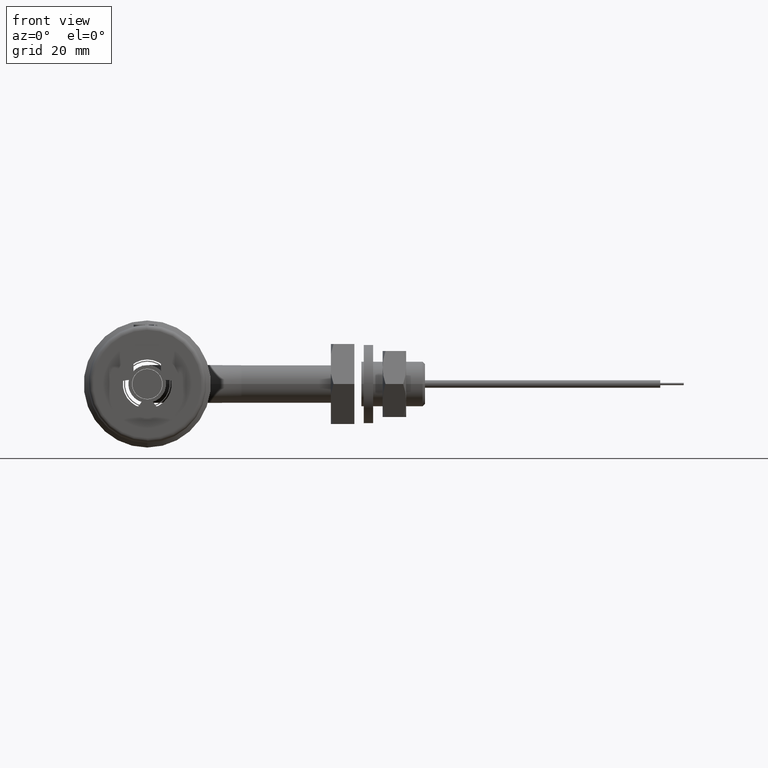
[diagram: clean part render]
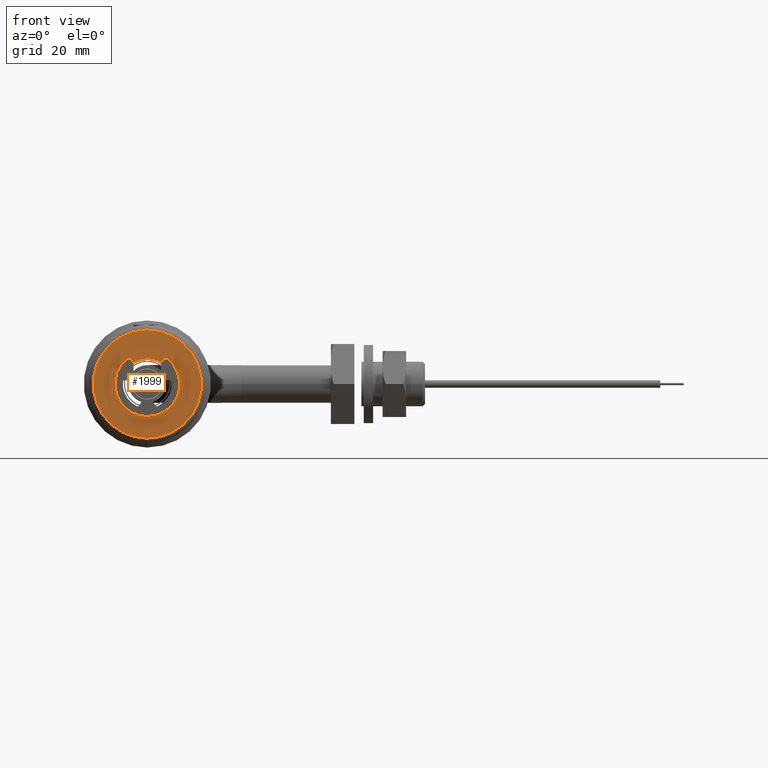
[diagram: same view with one face highlighted and labeled with its STEP entity id]
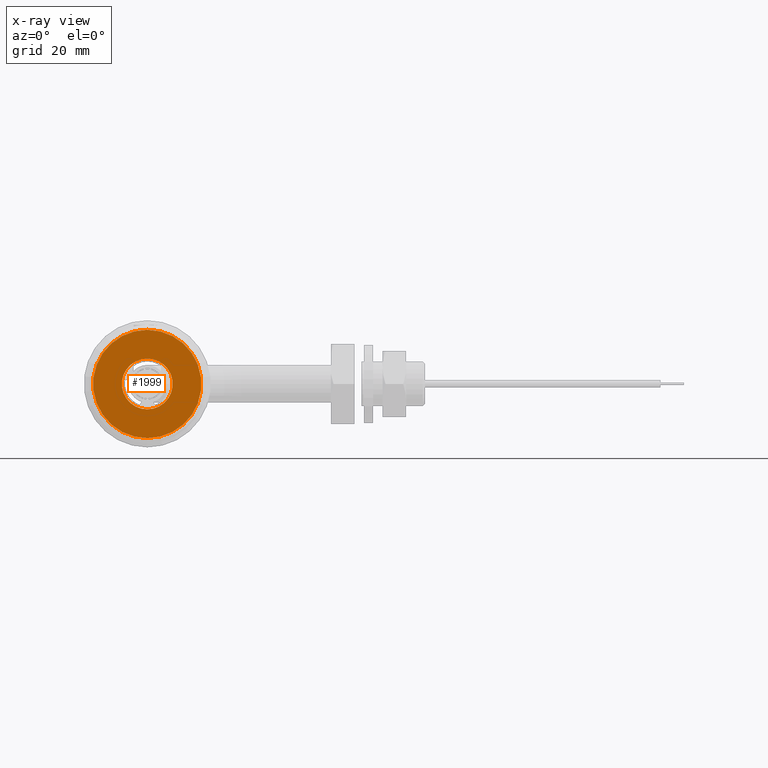
[diagram: x-ray of the same camera — body ghosted, the highlighted face saturated]
A machine part, front view. The second image highlights one B-rep face of the part: STEP entity #1999.
The next image is the same camera in x-ray: the body ghosted, the highlighted face saturated — about 0% of this face is hidden behind the body in this view.
In plain terms, the highlighted planar face has unit normal (0, -1, -0).
Its self-contained STEP definition (entity closure, byte-faithful):
#123 = VERTEX_POINT ( 'NONE', #5842 ) ;
#589 = VERTEX_POINT ( 'NONE', #9368 ) ;
#1256 = DIRECTION ( 'NONE',  ( -0.0000000000000000000, -1.000000000000000000, -0.0000000000000000000 ) ) ;
#1693 = DIRECTION ( 'NONE',  ( 0.0000000000000000000, 0.0000000000000000000, -1.000000000000000000 ) ) ;
#1744 = CARTESIAN_POINT ( 'NONE',  ( 0.0000000000000000000, 9.750000000000000000, 0.0000000000000000000 ) ) ;
#1999 = ADVANCED_FACE ( 'NONE', ( #9058, #8998 ), #5742, .T. ) ;
#2382 = ORIENTED_EDGE ( 'NONE', *, *, #8381, .F. ) ;
#2442 = DIRECTION ( 'NONE',  ( 0.0000000000000000000, 0.0000000000000000000, -1.000000000000000000 ) ) ;
#2609 = ORIENTED_EDGE ( 'NONE', *, *, #5952, .T. ) ;
#2614 = DIRECTION ( 'NONE',  ( 0.0000000000000000000, 0.0000000000000000000, -1.000000000000000000 ) ) ;
#2674 = DIRECTION ( 'NONE',  ( 0.0000000000000000000, 0.0000000000000000000, -1.000000000000000000 ) ) ;
#2727 = CARTESIAN_POINT ( 'NONE',  ( 0.0000000000000000000, 9.750000000000000000, 0.0000000000000000000 ) ) ;
#3009 = CARTESIAN_POINT ( 'NONE',  ( 6.614317362194854447E-16, 9.750000000000000000, 5.400999999999999801 ) ) ;
#3154 = CIRCLE ( 'NONE', #10410, 5.400999999999999801 ) ;
#3473 = AXIS2_PLACEMENT_3D ( 'NONE', #9735, #9843, #2442 ) ;
#4011 = CIRCLE ( 'NONE', #7538, 5.400999999999999801 ) ;
#4451 = CARTESIAN_POINT ( 'NONE',  ( 0.0000000000000000000, 9.750000000000000000, 0.0000000000000000000 ) ) ;
#5234 = AXIS2_PLACEMENT_3D ( 'NONE', #9913, #8380, #2674 ) ;
#5742 = PLANE ( 'NONE',  #5234 ) ;
#5842 = CARTESIAN_POINT ( 'NONE',  ( 0.0000000000000000000, 9.750000000000000000, -11.50000000000000355 ) ) ;
#5908 = DIRECTION ( 'NONE',  ( -0.0000000000000000000, -1.000000000000000000, -0.0000000000000000000 ) ) ;
#5952 = EDGE_CURVE ( 'NONE', #123, #589, #8999, .T. ) ;
#6159 = EDGE_LOOP ( 'NONE', ( #2609, #10108 ) ) ;
#7538 = AXIS2_PLACEMENT_3D ( 'NONE', #2727, #5908, #2614 ) ;
#7673 = DIRECTION ( 'NONE',  ( 0.0000000000000000000, 0.0000000000000000000, -1.000000000000000000 ) ) ;
#8023 = EDGE_CURVE ( 'NONE', #589, #123, #8351, .T. ) ;
#8351 = CIRCLE ( 'NONE', #3473, 11.50000000000000355 ) ;
#8380 = DIRECTION ( 'NONE',  ( 0.0000000000000000000, -1.000000000000000000, -0.0000000000000000000 ) ) ;
#8381 = EDGE_CURVE ( 'NONE', #9325, #8411, #3154, .T. ) ;
#8411 = VERTEX_POINT ( 'NONE', #9434 ) ;
#8504 = AXIS2_PLACEMENT_3D ( 'NONE', #1744, #9930, #1693 ) ;
#8516 = EDGE_CURVE ( 'NONE', #8411, #9325, #4011, .T. ) ;
#8776 = ORIENTED_EDGE ( 'NONE', *, *, #8516, .F. ) ;
#8962 = EDGE_LOOP ( 'NONE', ( #8776, #2382 ) ) ;
#8998 = FACE_BOUND ( 'NONE', #8962, .T. ) ;
#8999 = CIRCLE ( 'NONE', #8504, 11.50000000000000355 ) ;
#9058 = FACE_OUTER_BOUND ( 'NONE', #6159, .T. ) ;
#9325 = VERTEX_POINT ( 'NONE', #3009 ) ;
#9368 = CARTESIAN_POINT ( 'NONE',  ( 1.469576158976824342E-15, 9.750000000000000000, 11.50000000000000355 ) ) ;
#9434 = CARTESIAN_POINT ( 'NONE',  ( 0.0000000000000000000, 9.750000000000000000, -5.400999999999999801 ) ) ;
#9735 = CARTESIAN_POINT ( 'NONE',  ( 0.0000000000000000000, 9.750000000000000000, 0.0000000000000000000 ) ) ;
#9843 = DIRECTION ( 'NONE',  ( -0.0000000000000000000, -1.000000000000000000, -0.0000000000000000000 ) ) ;
#9913 = CARTESIAN_POINT ( 'NONE',  ( 11.50000000000000355, 9.750000000000000000, 0.0000000000000000000 ) ) ;
#9930 = DIRECTION ( 'NONE',  ( -0.0000000000000000000, -1.000000000000000000, -0.0000000000000000000 ) ) ;
#10108 = ORIENTED_EDGE ( 'NONE', *, *, #8023, .T. ) ;
#10410 = AXIS2_PLACEMENT_3D ( 'NONE', #4451, #1256, #7673 ) ;